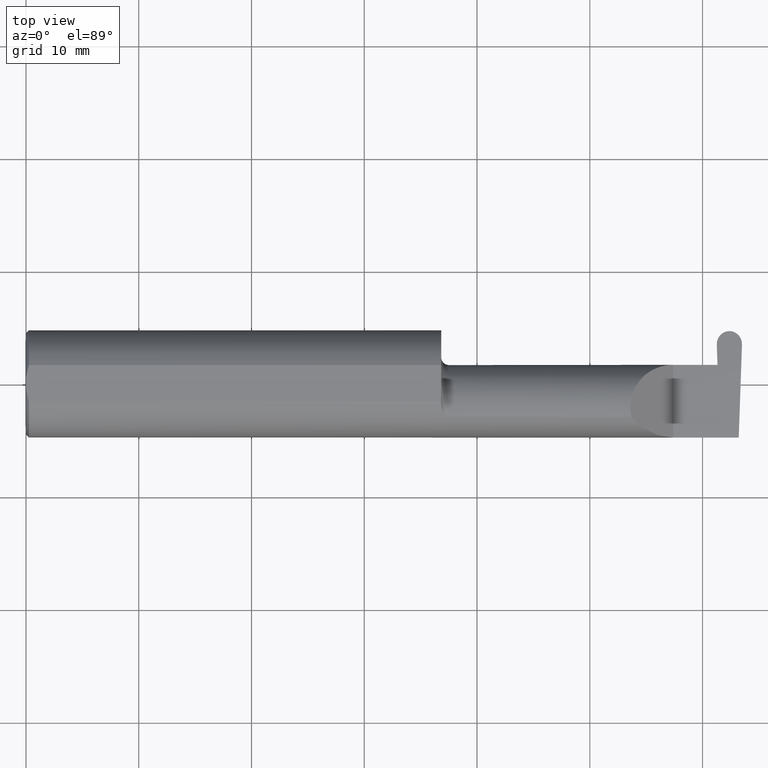
[diagram: clean part render]
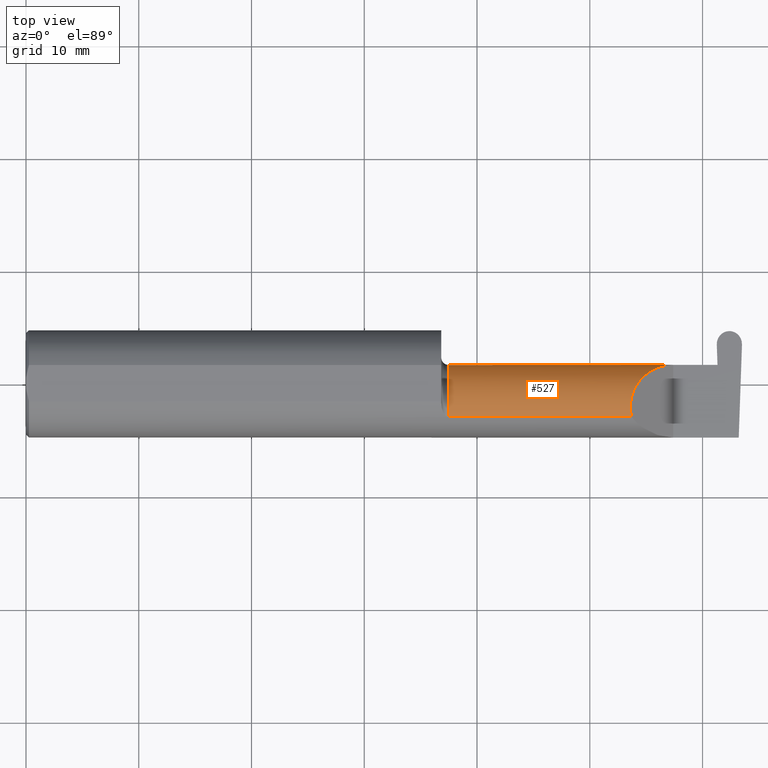
[diagram: same view with one face highlighted and labeled with its STEP entity id]
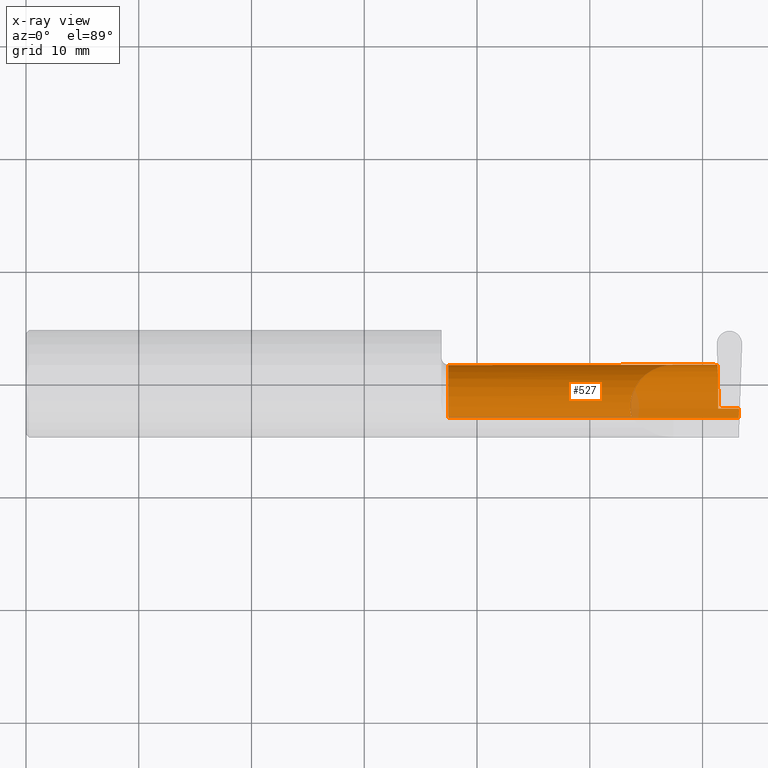
[diagram: x-ray of the same camera — body ghosted, the highlighted face saturated]
A machine part, top view. The second image highlights one B-rep face of the part: STEP entity #527.
The next image is the same camera in x-ray: the body ghosted, the highlighted face saturated — about 3% of this face is hidden behind the body in this view.
In plain terms, the highlighted cylindrical surface (partial cylindrical patch) has radius 3.81 mm, axis along (-1, -0, -0).
Its self-contained STEP definition (entity closure, byte-faithful):
#2 = LINE ( 'NONE', #388, #511 ) ;
#10 = VERTEX_POINT ( 'NONE', #173 ) ;
#12 = CARTESIAN_POINT ( 'NONE',  ( 1.450000000000000178, 0.06655862405286426531, -0.005234924505377316559 ) ) ;
#33 = ORIENTED_EDGE ( 'NONE', *, *, #652, .T. ) ;
#39 = FACE_OUTER_BOUND ( 'NONE', #541, .T. ) ;
#40 = CARTESIAN_POINT ( 'NONE',  ( 2.414454177608814867, 0.06655862405286415429, -0.005234924505383332580 ) ) ;
#46 = B_SPLINE_CURVE_WITH_KNOTS ( 'NONE', 3,
 ( #231, #69, #283, #116 ),
 .UNSPECIFIED., .F., .F.,
 ( 4, 4 ),
 ( 0.000000000000000000, 1.000000000000000000 ),
 .UNSPECIFIED. ) ;
#59 = EDGE_CURVE ( 'NONE', #579, #233, #453, .T. ) ;
#69 = CARTESIAN_POINT ( 'NONE',  ( 2.405177986947488300, 0.06658908270190941336, -0.003489949670254619170 ) ) ;
#84 = VERTEX_POINT ( 'NONE', #480 ) ;
#86 = CARTESIAN_POINT ( 'NONE',  ( 2.417090374579074830, 0.002105059811797808066, -0.1500000000000000500 ) ) ;
#92 = DIRECTION ( 'NONE',  ( -1.000000000000000000, -0.000000000000000000, -0.000000000000000000 ) ) ;
#95 = EDGE_CURVE ( 'NONE', #10, #481, #312, .T. ) ;
#97 = CYLINDRICAL_SURFACE ( 'NONE', #426, 0.1500000000000000500 ) ;
#99 = CARTESIAN_POINT ( 'NONE',  ( 2.417117327835069940, -0.08334999999999997966, -0.1500000000000000500 ) ) ;
#108 = LINE ( 'NONE', #580, #356 ) ;
#115 = EDGE_CURVE ( 'NONE', #306, #264, #221, .T. ) ;
#116 = CARTESIAN_POINT ( 'NONE',  ( 2.405238904245578624, 0.06664999999999991764, 0.000000000000000000 ) ) ;
#119 = LINE ( 'NONE', #381, #203 ) ;
#125 = ORIENTED_EDGE ( 'NONE', *, *, #594, .T. ) ;
#135 = VERTEX_POINT ( 'NONE', #630 ) ;
#155 = ORIENTED_EDGE ( 'NONE', *, *, #59, .F. ) ;
#171 = DIRECTION ( 'NONE',  ( 1.000000000000000000, 7.100831337523756508E-17, 0.000000000000000000 ) ) ;
#173 = CARTESIAN_POINT ( 'NONE',  ( 2.260000000000000231, 0.06665000000000002867, 1.285879139104721225E-16 ) ) ;
#177 = CARTESIAN_POINT ( 'NONE',  ( 2.113883229301068312, -0.1172600179964003175, 0.1461167706989304760 ) ) ;
#196 =( BOUNDED_CURVE ( )  B_SPLINE_CURVE ( 3, ( #419, #215, #644, #262 ),
 .UNSPECIFIED., .F., .T. ) 
 B_SPLINE_CURVE_WITH_KNOTS ( ( 4, 4 ),
 ( 6.055147272130144920, 7.853981633974482790 ),
 .UNSPECIFIED. ) 
 CURVE ( )  GEOMETRIC_REPRESENTATION_ITEM ( )  RATIONAL_B_SPLINE_CURVE ( ( 1.000000000000000000, 0.7480442670255273985, 0.7480442670255273985, 1.000000000000000000 ) ) 
 REPRESENTATION_ITEM ( '' )  );
#199 = DIRECTION ( 'NONE',  ( -1.000000000000000000, -7.100831337523756508E-17, -0.000000000000000000 ) ) ;
#203 = VECTOR ( 'NONE', #604, 39.37007874015748143 ) ;
#215 = CARTESIAN_POINT ( 'NONE',  ( 2.090221225029926355, -0.01530148607434139371, 0.1697787749700724880 ) ) ;
#221 =( BOUNDED_CURVE ( )  B_SPLINE_CURVE ( 3, ( #99, #86, #683, #40 ),
 .UNSPECIFIED., .F., .T. ) 
 B_SPLINE_CURVE_WITH_KNOTS ( ( 4, 4 ),
 ( 3.159045946109732217, 4.694935687864687957 ),
 .UNSPECIFIED. ) 
 CURVE ( )  GEOMETRIC_REPRESENTATION_ITEM ( )  RATIONAL_B_SPLINE_CURVE ( ( 1.000000000000000000, 0.8128932002257799327, 0.8128932002257799327, 1.000000000000000000 ) ) 
 REPRESENTATION_ITEM ( '' )  );
#231 = CARTESIAN_POINT ( 'NONE',  ( 2.405147528298442694, 0.06655862405286416816, -0.005234924505381928321 ) ) ;
#233 = VERTEX_POINT ( 'NONE', #375 ) ;
#262 = CARTESIAN_POINT ( 'NONE',  ( 2.260000000000000231, 0.06665000000000002867, 1.285879139104721225E-16 ) ) ;
#264 = VERTEX_POINT ( 'NONE', #605 ) ;
#272 = CARTESIAN_POINT ( 'NONE',  ( 2.488471823259916782, -0.1172600179964005812, -0.1461167706989303927 ) ) ;
#283 = CARTESIAN_POINT ( 'NONE',  ( 2.405208445596533462, 0.06661954135095467244, -0.001744974835127309368 ) ) ;
#289 = CARTESIAN_POINT ( 'NONE',  ( 2.405147528298442694, 0.06655862405286416816, -0.005234924505381928321 ) ) ;
#293 = VECTOR ( 'NONE', #633, 39.37007874015748143 ) ;
#306 = VERTEX_POINT ( 'NONE', #322 ) ;
#312 = LINE ( 'NONE', #534, #293 ) ;
#320 = ORIENTED_EDGE ( 'NONE', *, *, #620, .F. ) ;
#322 = CARTESIAN_POINT ( 'NONE',  ( 2.417117327835069940, -0.08334999999999997966, -0.1500000000000000500 ) ) ;
#356 = VECTOR ( 'NONE', #92, 39.37007874015748143 ) ;
#362 = ORIENTED_EDGE ( 'NONE', *, *, #684, .T. ) ;
#363 = CARTESIAN_POINT ( 'NONE',  ( 1.450000000000000178, -0.08335000000000004905, 0.000000000000000000 ) ) ;
#375 = CARTESIAN_POINT ( 'NONE',  ( 1.474999999999999867, -0.1172600179964005951, -0.1461167706989303927 ) ) ;
#381 = CARTESIAN_POINT ( 'NONE',  ( 1.943402844999999823, -0.1172600179964006090, -0.1461167706989303927 ) ) ;
#388 = CARTESIAN_POINT ( 'NONE',  ( 1.943402844999999823, -0.1172600179964006090, 0.1461167706989303927 ) ) ;
#392 = AXIS2_PLACEMENT_3D ( 'NONE', #641, #530, #523 ) ;
#410 = ORIENTED_EDGE ( 'NONE', *, *, #575, .F. ) ;
#411 = CARTESIAN_POINT ( 'NONE',  ( 2.489588163846105484, -0.08334999999999997966, -0.1500000000000000500 ) ) ;
#415 = EDGE_CURVE ( 'NONE', #264, #699, #504, .T. ) ;
#419 = CARTESIAN_POINT ( 'NONE',  ( 2.113883229301068312, -0.1172600179964003175, 0.1461167706989304760 ) ) ;
#426 = AXIS2_PLACEMENT_3D ( 'NONE', #363, #539, #536 ) ;
#442 =( BOUNDED_CURVE ( )  B_SPLINE_CURVE ( 3, ( #272, #532, #489, #411 ),
 .UNSPECIFIED., .F., .F. ) 
 B_SPLINE_CURVE_WITH_KNOTS ( ( 4, 4 ),
 ( 0.8789888184544065730, 1.107026853503850328 ),
 .UNSPECIFIED. ) 
 CURVE ( )  GEOMETRIC_REPRESENTATION_ITEM ( )  RATIONAL_B_SPLINE_CURVE ( ( 1.000000000000000000, 0.9956712472009929815, 0.9956712472009929815, 1.000000000000000000 ) ) 
 REPRESENTATION_ITEM ( '' )  );
#446 = ORIENTED_EDGE ( 'NONE', *, *, #115, .F. ) ;
#453 = CIRCLE ( 'NONE', #392, 0.1500000000000000500 ) ;
#456 = ORIENTED_EDGE ( 'NONE', *, *, #95, .T. ) ;
#480 = CARTESIAN_POINT ( 'NONE',  ( 2.488471823259916782, -0.1172600179964005812, -0.1461167706989303927 ) ) ;
#481 = VERTEX_POINT ( 'NONE', #554 ) ;
#489 = CARTESIAN_POINT ( 'NONE',  ( 2.489189135516857831, -0.09477667630339406402, -0.1500000000000000500 ) ) ;
#499 = VERTEX_POINT ( 'NONE', #177 ) ;
#504 = LINE ( 'NONE', #12, #647 ) ;
#511 = VECTOR ( 'NONE', #171, 39.37007874015748143 ) ;
#523 = DIRECTION ( 'NONE',  ( 0.000000000000000000, -1.000000000000000000, 0.000000000000000000 ) ) ;
#527 = ADVANCED_FACE ( 'NONE', ( #39 ), #97, .T. ) ;
#530 = DIRECTION ( 'NONE',  ( -1.000000000000000000, -7.100831337523756508E-17, -0.000000000000000000 ) ) ;
#532 = CARTESIAN_POINT ( 'NONE',  ( 2.488815404197634251, -0.1061291577212407494, -0.1486999626928446616 ) ) ;
#534 = CARTESIAN_POINT ( 'NONE',  ( 1.450000000000000178, 0.06664999999999997315, 1.285879139104721225E-16 ) ) ;
#536 = DIRECTION ( 'NONE',  ( 0.000000000000000000, -1.000000000000000000, 0.000000000000000000 ) ) ;
#539 = DIRECTION ( 'NONE',  ( -1.000000000000000000, -7.100831337523756508E-17, -0.000000000000000000 ) ) ;
#541 = EDGE_LOOP ( 'NONE', ( #362, #155, #33, #125, #456, #666, #672, #446, #320, #410 ) ) ;
#554 = CARTESIAN_POINT ( 'NONE',  ( 2.405238904245578624, 0.06664999999999991764, 0.000000000000000000 ) ) ;
#575 = EDGE_CURVE ( 'NONE', #84, #135, #442, .T. ) ;
#579 = VERTEX_POINT ( 'NONE', #637 ) ;
#580 = CARTESIAN_POINT ( 'NONE',  ( 2.733184360054361939, -0.08334999999999997966, -0.1500000000000000500 ) ) ;
#594 = EDGE_CURVE ( 'NONE', #499, #10, #196, .T. ) ;
#604 = DIRECTION ( 'NONE',  ( -1.000000000000000000, -7.100831337523756508E-17, -0.000000000000000000 ) ) ;
#605 = CARTESIAN_POINT ( 'NONE',  ( 2.414454177608814867, 0.06655862405286415429, -0.005234924505383332580 ) ) ;
#620 = EDGE_CURVE ( 'NONE', #135, #306, #108, .T. ) ;
#630 = CARTESIAN_POINT ( 'NONE',  ( 2.489588163846105484, -0.08334999999999997966, -0.1500000000000000500 ) ) ;
#633 = DIRECTION ( 'NONE',  ( 1.000000000000000000, 7.100831337523756508E-17, 0.000000000000000000 ) ) ;
#637 = CARTESIAN_POINT ( 'NONE',  ( 1.474999999999999867, -0.1172600179964006090, 0.1461167706989303927 ) ) ;
#641 = CARTESIAN_POINT ( 'NONE',  ( 1.474999999999999867, -0.08335000000000004905, 0.000000000000000000 ) ) ;
#644 = CARTESIAN_POINT ( 'NONE',  ( 2.155331797197863608, 0.06665000000000002867, 0.1046682028021359151 ) ) ;
#647 = VECTOR ( 'NONE', #199, 39.37007874015748143 ) ;
#652 = EDGE_CURVE ( 'NONE', #579, #499, #2, .T. ) ;
#655 = EDGE_CURVE ( 'NONE', #699, #481, #46, .T. ) ;
#666 = ORIENTED_EDGE ( 'NONE', *, *, #655, .F. ) ;
#672 = ORIENTED_EDGE ( 'NONE', *, *, #415, .F. ) ;
#683 = CARTESIAN_POINT ( 'NONE',  ( 2.415998328610626800, 0.06357628547474564185, -0.09063792740366215239 ) ) ;
#684 = EDGE_CURVE ( 'NONE', #84, #233, #119, .T. ) ;
#699 = VERTEX_POINT ( 'NONE', #289 ) ;